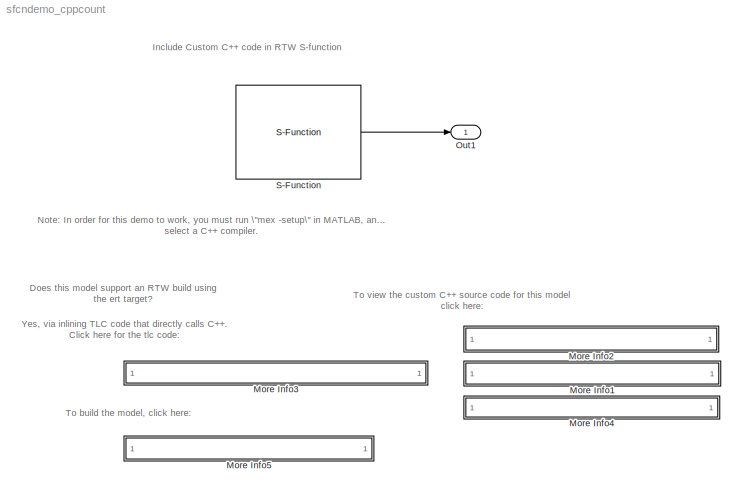
MODEL sfcndemo_cppcount
KIND model
CONFIG PostLoadFcn = sfcndemo_rtwcmd;
BLOCK [SubSystem] More Info1
  MaskDisplay = disp('matlabroot<path>')
  MaskIconFrame = on
  MaskIconOpaque = on
  MaskIconRotate = none
  MaskIconUnits = autoscale
  MinAlgLoopOccurrences = off
  OpenFcn = filename=fullfile(matlabroot, 'simulink', 'src', 'sfun_cppcount_c.c');\neval('edit(filename)')
  Ports = []
  PropExecContextAcrossSSBoundary = on
  RTWSystemCode = Auto
  TreatAsAtomicUnit = off
BLOCK [SubSystem] More Info2
  MaskDisplay = disp('matlabroot<path>')
  MaskIconFrame = on
  MaskIconOpaque = on
  MaskIconRotate = none
  MaskIconUnits = autoscale
  MinAlgLoopOccurrences = off
  OpenFcn = filename=fullfile(matlabroot, 'simulink', 'src', 'sfun_cppcount_cpp.cpp');\neval('edit(filename)')
  Ports = []
  PropExecContextAcrossSSBoundary = on
  RTWSystemCode = Auto
  TreatAsAtomicUnit = off
BLOCK [SubSystem] More Info3
  MaskDisplay = disp('matlabroot<path>')
  MaskIconFrame = on
  MaskIconOpaque = on
  MaskIconRotate = none
  MaskIconUnits = autoscale
  MinAlgLoopOccurrences = off
  OpenFcn = filename=fullfile(matlabroot, 'toolbox','simulink', 'blocks', 'tlc_c','sfun_cppcount_c.tlc');\neval('edit(filename)')
  Ports = []
  PropExecContextAcrossSSBoundary = on
  RTWSystemCode = Auto
  TreatAsAtomicUnit = off
BLOCK [SubSystem] More Info4
  MaskDisplay = disp('matlabroot<path>')
  MaskIconFrame = on
  MaskIconOpaque = on
  MaskIconRotate = none
  MaskIconUnits = autoscale
  MinAlgLoopOccurrences = off
  OpenFcn = filename=fullfile(matlabroot, 'simulink', 'src', 'sfun_cppcount_cpp.h');\neval('edit(filename)')
  Ports = []
  PropExecContextAcrossSSBoundary = on
  RTWSystemCode = Auto
  TreatAsAtomicUnit = off
BLOCK [SubSystem] More Info5
  MaskDisplay = disp('Double click to build model with ERT target')
  MaskIconFrame = on
  MaskIconOpaque = on
  MaskIconRotate = none
  MaskIconUnits = autoscale
  MinAlgLoopOccurrences = off
  OpenFcn = rtwbuild('sfcndemo_cppcount')\n
  Ports = []
  PropExecContextAcrossSSBoundary = on
  RTWSystemCode = Auto
  TreatAsAtomicUnit = off
BLOCK [Outport] Out1
  IconDisplay = Port number
BLOCK [S-Function] S-Function
  FunctionName = sfun_cppcount_c
  Parameters = 1
  Ports = [0, 1]
ANNOTATION (root): Does this model support an RTW build using \nthe ert target?
ANNOTATION (root): Include Custom C++ code in RTW S-function
ANNOTATION (root): Note: In order for this demo to work, you must run \"mex -setup\" in MATLAB, and \nselect a C++ compiler.
ANNOTATION (root): To build the model, click here:
ANNOTATION (root): To view the custom C++ source code for this model\nclick here:
ANNOTATION (root): Yes, via inlining TLC code that directly calls C++. \nClick here for the tlc code:
ANNOTATION More Info1: \n\n\n
ANNOTATION More Info2: \n\n\n
ANNOTATION More Info3: \n\n\n
ANNOTATION More Info4: \n\n\n
ANNOTATION More Info5: \n\n\n
LINE S-Function:1 -> Out1:1
note: 4 file-system paths scrubbed to <path> (not preserved elsewhere — flat text is the only slx artifact)
